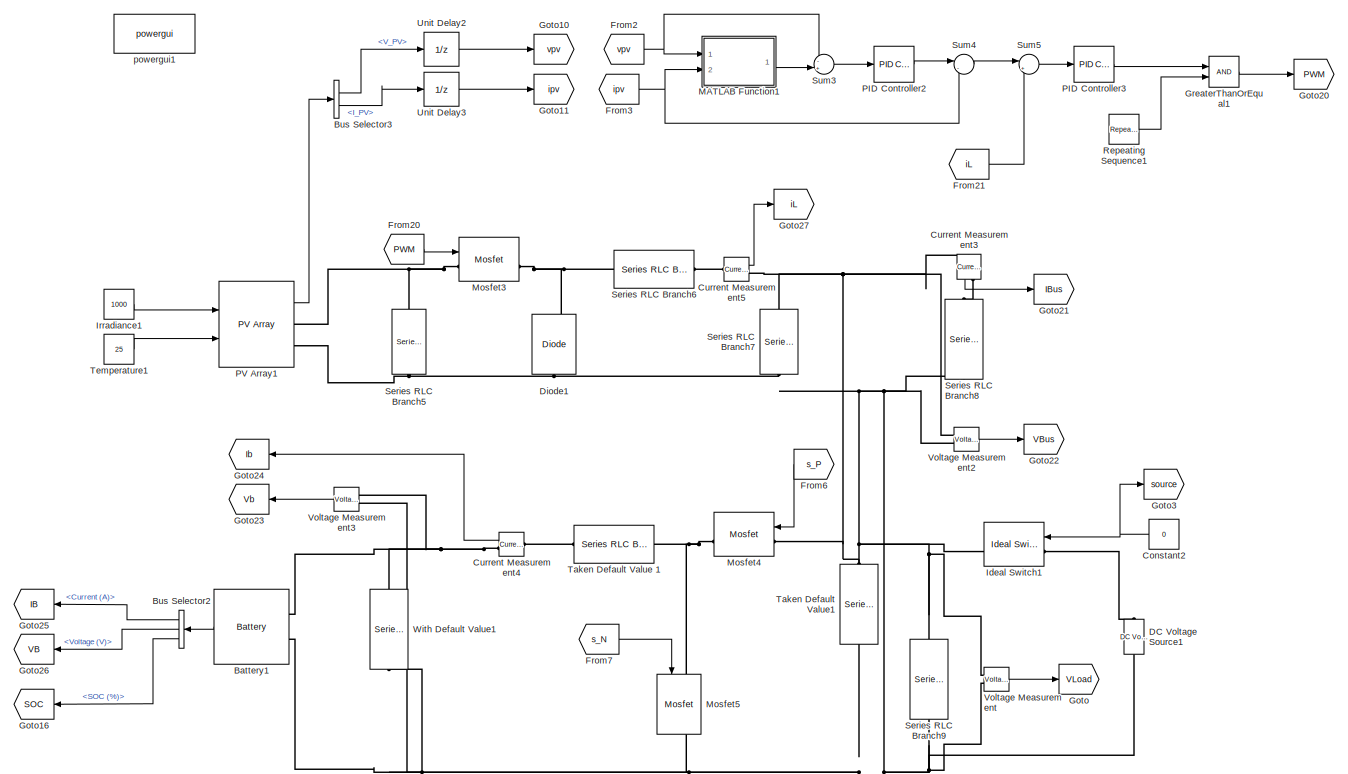
[diagram: root canvas - part 1/2, full width, top band]
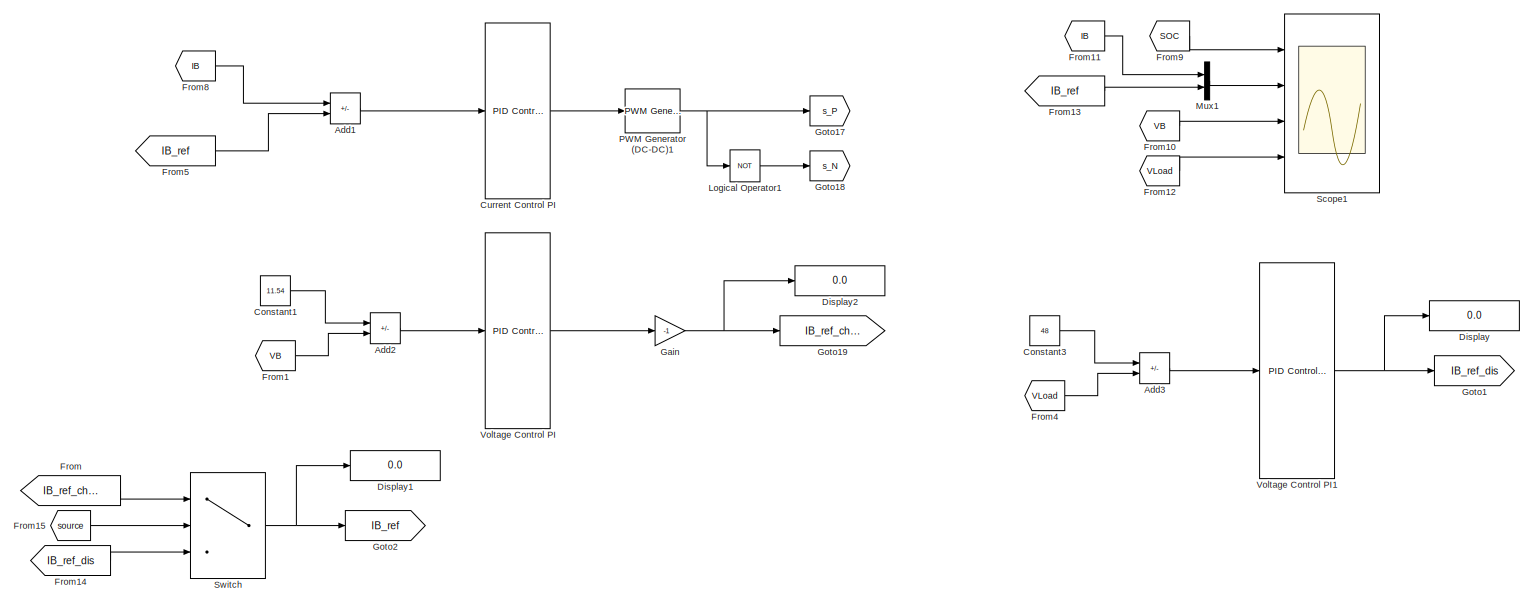
[diagram: root canvas - part 2/2, full width, bottom band]
MODEL slx_7f3824001438
KIND model
CONFIG AbsTol = auto
CONFIG EnableMultiTasking = off
CONFIG FixedStep = auto
CONFIG MaxStep = auto
CONFIG MinStep = auto
CONFIG RelTol = 1e-3
CONFIG SampleTimeConstraint = Unconstrained
CONFIG SolverName = VariableStepAuto
CONFIG StartTime = 0.0
CONFIG StopTime = 10.0
BLOCK [Sum] Add1
  IconShape = rectangular
  Inputs = +-
  Ports = [2, 1]
BLOCK [Sum] Add2
  IconShape = rectangular
  Inputs = +-
  Ports = [2, 1]
BLOCK [Sum] Add3
  IconShape = rectangular
  Inputs = +-
  Ports = [2, 1]
BLOCK [Reference] Battery1  REF=spsBatteryLib/Battery
  Ports = [0, 1, 0, 0, 0, 2]
  SourceBlock = spsBatteryLib/Battery
  SourceProductBaseCode = PS
  SourceType = Battery
BLOCK [BusSelector] Bus Selector2
  OutputSignals = Current (A),Voltage (V),SOC (%)
  Ports = [1, 3]
BLOCK [BusSelector] Bus Selector3
  OutputSignals = V_PV,I_PV
  Ports = [1, 2]
BLOCK [Constant] Constant1
  Value = 11.54
BLOCK [Constant] Constant2
  Value = 0
BLOCK [Constant] Constant3
  Value = 48
BLOCK [Reference] Current Control PI  REF=pid_lib/PID Controller
  Ports = [1, 1]
  SourceBlock = pid_lib/PID Controller
  SourceProductBaseCode = SL
  SourceType = PID 1dof
BLOCK [Reference] Current Measurement3  REF=spsCurrentMeasurementLib/Current Measurement
  NameLocation = left
  Ports = [0, 1, 0, 0, 0, 1, 1]
  SourceBlock = spsCurrentMeasurementLib/Current Measurement
  SourceProductBaseCode = PS
  SourceType = Current Measurement
  UserDataPersistent = on
BLOCK [Reference] Current Measurement4  REF=spsCurrentMeasurementLib/Current Measurement
  NameLocation = top
  Ports = [0, 1, 0, 0, 0, 1, 1]
  SourceBlock = spsCurrentMeasurementLib/Current Measurement
  SourceProductBaseCode = PS
  SourceType = Current Measurement
  UserDataPersistent = on
BLOCK [Reference] Current Measurement5  REF=spsCurrentMeasurementLib/Current Measurement
  Ports = [0, 1, 0, 0, 0, 1, 1]
  SourceBlock = spsCurrentMeasurementLib/Current Measurement
  SourceProductBaseCode = PS
  SourceType = Current Measurement
  UserDataPersistent = on
BLOCK [Reference] DC Voltage Source1  REF=spsDCVoltageSourceLib/DC Voltage Source
  Ports = [0, 0, 0, 0, 0, 1, 1]
  SourceBlock = spsDCVoltageSourceLib/DC Voltage Source
  SourceProductBaseCode = PS
  SourceType = DC Voltage Source
BLOCK [Reference] Diode1  REF=spsDiodeLib/Diode
  NameLocation = right
  Ports = [0, 1, 0, 0, 0, 1, 1]
  SourceBlock = spsDiodeLib/Diode
  SourceProductBaseCode = PS
  SourceType = Diode
BLOCK [Display] Display
  Decimation = 1
  Ports = [1]
BLOCK [Display] Display1
  Decimation = 1
  Ports = [1]
BLOCK [Display] Display2
  Decimation = 1
  Ports = [1]
BLOCK [From] From
  GotoTag = IB_ref_charge
BLOCK [From] From1
  GotoTag = VB
BLOCK [From] From10
  GotoTag = VB
BLOCK [From] From11
  GotoTag = IB
BLOCK [From] From12
  GotoTag = VLoad
BLOCK [From] From13
  GotoTag = IB_ref
BLOCK [From] From14
  GotoTag = IB_ref_dis
BLOCK [From] From15
  GotoTag = source
BLOCK [From] From2
  GotoTag = vpv
  TagVisibility = global
BLOCK [From] From20
  GotoTag = PWM
BLOCK [From] From21
  GotoTag = iL
BLOCK [From] From3
  GotoTag = ipv
  TagVisibility = global
BLOCK [From] From4
  GotoTag = VLoad
BLOCK [From] From5
  GotoTag = IB_ref
BLOCK [From] From6
  GotoTag = s_P
BLOCK [From] From7
  GotoTag = s_N
BLOCK [From] From8
  GotoTag = IB
BLOCK [From] From9
  GotoTag = SOC
BLOCK [Gain] Gain
  Gain = -1
BLOCK [Goto] Goto
  GotoTag = VLoad
BLOCK [Goto] Goto1
  GotoTag = IB_ref_dis
BLOCK [Goto] Goto10
  GotoTag = vpv
  TagVisibility = global
BLOCK [Goto] Goto11
  GotoTag = ipv
  TagVisibility = global
BLOCK [Goto] Goto16
  GotoTag = SOC
BLOCK [Goto] Goto17
  GotoTag = s_P
BLOCK [Goto] Goto18
  GotoTag = s_N
BLOCK [Goto] Goto19
  GotoTag = IB_ref_charge
BLOCK [Goto] Goto2
  GotoTag = IB_ref
BLOCK [Goto] Goto20
  GotoTag = PWM
BLOCK [Goto] Goto21
  GotoTag = IBus
BLOCK [Goto] Goto22
  GotoTag = VBus
BLOCK [Goto] Goto23
  GotoTag = Vb
BLOCK [Goto] Goto24
  GotoTag = Ib
BLOCK [Goto] Goto25
  GotoTag = IB
BLOCK [Goto] Goto26
  GotoTag = VB
BLOCK [Goto] Goto27
  GotoTag = iL
BLOCK [Goto] Goto3
  GotoTag = source
BLOCK [RelationalOperator] GreaterThanOrEqual1
  InputSameDT = off
  OutDataTypeStr = boolean
  Ports = [2, 1]
  RndMeth = Simplest
BLOCK [Reference] Ideal Switch1  REF=spsIdealSwitchLib/Ideal Switch
  Ports = [1, 1, 0, 0, 0, 1, 1]
  SourceBlock = spsIdealSwitchLib/Ideal Switch
  SourceProductBaseCode = PS
  SourceType = Ideal Switch
BLOCK [Constant] Irradiance1
  Value = 1000
BLOCK [Logic] Logical Operator1
  AllPortsSameDT = off
  Operator = NOT
  OutDataTypeStr = boolean
  Ports = [1, 1]
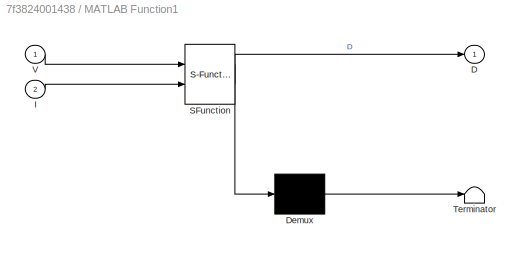
BLOCK [SubSystem] MATLAB Function1
  ErrorFcn = Stateflow.Translate.translate
  PermitHierarchicalResolution = ExplicitOnly
  Ports = [2, 1]
  RequestExecContextInheritance = off
  SFBlockType = MATLAB Function
  TreatAsAtomicUnit = on
BLOCK [Demux] MATLAB Function1/ Demux 
  Outputs = 1
  Ports = [1, 1]
BLOCK [S-Function] MATLAB Function1/ SFunction 
  EnableBusSupport = on
  FunctionName = sf_sfun
  PortCounts = [2 2]
  Ports = [2, 2]
  SFcnIsStateOwnerBlock = off
  SFunctionDeploymentMode = off
  Tag = Stateflow S-Function 1
BLOCK [Terminator] MATLAB Function1/ Terminator 
BLOCK [Outport] MATLAB Function1/D
  VectorParamsAs1DForOutWhenUnconnected = off
BLOCK [Inport] MATLAB Function1/I
  Port = 2
BLOCK [Inport] MATLAB Function1/V
BLOCK [Reference] Mosfet3  REF=spsMosfetLib/Mosfet
  Ports = [1, 1, 0, 0, 0, 1, 1]
  SourceBlock = spsMosfetLib/Mosfet
  SourceProductBaseCode = PS
  SourceType = Mosfet
BLOCK [Reference] Mosfet4  REF=spsMosfetLib/Mosfet
  Ports = [1, 1, 0, 0, 0, 1, 1]
  SourceBlock = spsMosfetLib/Mosfet
  SourceProductBaseCode = PS
  SourceType = Mosfet
BLOCK [Reference] Mosfet5  REF=spsMosfetLib/Mosfet
  NameLocation = left
  Ports = [1, 1, 0, 0, 0, 1, 1]
  SourceBlock = spsMosfetLib/Mosfet
  SourceProductBaseCode = PS
  SourceType = Mosfet
BLOCK [Mux] Mux1
  DisplayOption = bar
  Inputs = 2
  Ports = [2, 1]
BLOCK [Reference] PID Controller2  REF=pid_lib/PID Controller
  Ports = [1, 1]
  SourceBlock = pid_lib/PID Controller
  SourceProductBaseCode = SL
  SourceType = PID 1dof
BLOCK [Reference] PID Controller3  REF=pid_lib/PID Controller
  Ports = [1, 1]
  SourceBlock = pid_lib/PID Controller
  SourceProductBaseCode = SL
  SourceType = PID 1dof
BLOCK [Reference] PV Array1  REF=spsPVArrayLib/PV Array
  Ports = [2, 1, 0, 0, 0, 0, 2]
  SourceBlock = spsPVArrayLib/PV Array
  SourceProductBaseCode = PS
  SourceType = PV array
BLOCK [Reference] PWM Generator (DC-DC)1  REF=spsPWMGeneratorDCDCLib/PWM Generator
(DC-DC)
  Ports = [1, 1]
  SourceBlock = spsPWMGeneratorDCDCLib/PWM Generator\n(DC-DC)
  SourceProductBaseCode = PS
  SourceType = PWM Generator (DC-DC)
BLOCK [Reference] Repeating Sequence1  REF=simulink/Sources/Repeating
Sequence
  Ports = [0, 1]
  SourceBlock = simulink/Sources/Repeating\nSequence
  SourceProductBaseCode = SL
  SourceType = Repeating table
BLOCK [Scope] Scope1
  Floating = off
  NumInputPorts = 4
  Ports = [4]
  ScopeSpecificationString = Simulink.scopes.TimeScopeBlockCfg('CurrentConfiguration', extmgr.ConfigurationSet(extmgr.Configuration('Core','General UI',true,'FigureColor',[1 1 1]),extmgr.Configuration('Core','Source UI',true),extmgr.Configuration('Sources','WiredSimulink',true),extmgr.Configuration('Visuals','Time Domain',true,'SerializedDisplays',{struct('MinYLimReal','43.44178','MaxYLimReal','46.2045','YLabelReal','','MinYL...<+7198ch>
BLOCK [Reference] Series RLC Branch5  REF=spsSeriesRLCBranchLib/Series RLC Branch
  NameLocation = left
  Ports = [0, 0, 0, 0, 0, 1, 1]
  SourceBlock = spsSeriesRLCBranchLib/Series RLC Branch
  SourceProductBaseCode = PS
  SourceType = Series RLC Branch
BLOCK [Reference] Series RLC Branch6  REF=spsSeriesRLCBranchLib/Series RLC Branch
  Ports = [0, 0, 0, 0, 0, 1, 1]
  SourceBlock = spsSeriesRLCBranchLib/Series RLC Branch
  SourceProductBaseCode = PS
  SourceType = Series RLC Branch
BLOCK [Reference] Series RLC Branch7  REF=spsSeriesRLCBranchLib/Series RLC Branch
  NameLocation = left
  Ports = [0, 0, 0, 0, 0, 1, 1]
  SourceBlock = spsSeriesRLCBranchLib/Series RLC Branch
  SourceProductBaseCode = PS
  SourceType = Series RLC Branch
BLOCK [Reference] Series RLC Branch8  REF=spsSeriesRLCBranchLib/Series RLC Branch
  NameLocation = left
  Ports = [0, 0, 0, 0, 0, 1, 1]
  SourceBlock = spsSeriesRLCBranchLib/Series RLC Branch
  SourceProductBaseCode = PS
  SourceType = Series RLC Branch
BLOCK [Reference] Series RLC Branch9  REF=spsSeriesRLCBranchLib/Series RLC Branch
  NameLocation = left
  Ports = [0, 0, 0, 0, 0, 1, 1]
  SourceBlock = spsSeriesRLCBranchLib/Series RLC Branch
  SourceProductBaseCode = PS
  SourceType = Series RLC Branch
BLOCK [Sum] Sum3
  Inputs = -+|
  Ports = [2, 1]
BLOCK [Sum] Sum4
  Inputs = |-+
  Ports = [2, 1]
BLOCK [Sum] Sum5
  Inputs = |+-
  Ports = [2, 1]
BLOCK [Switch] Switch
  Criteria = u2 > Threshold
  InputSameDT = off
  SaturateOnIntegerOverflow = off
BLOCK [Reference] Taken Default Value 1  REF=spsSeriesRLCBranchLib/Series RLC Branch
  Ports = [0, 0, 0, 0, 0, 1, 1]
  SourceBlock = spsSeriesRLCBranchLib/Series RLC Branch
  SourceProductBaseCode = PS
  SourceType = Series RLC Branch
BLOCK [Reference] Taken Default Value1  REF=spsSeriesRLCBranchLib/Series RLC Branch
  NameLocation = left
  Ports = [0, 0, 0, 0, 0, 1, 1]
  SourceBlock = spsSeriesRLCBranchLib/Series RLC Branch
  SourceProductBaseCode = PS
  SourceType = Series RLC Branch
BLOCK [Constant] Temperature1
  Value = 25
BLOCK [UnitDelay] Unit Delay2
  HasFrameUpgradeWarning = on
  SampleTime = 1e-4
BLOCK [UnitDelay] Unit Delay3
  HasFrameUpgradeWarning = on
  SampleTime = 1e-4
BLOCK [Reference] Voltage Control PI  REF=pid_lib/PID Controller
  Ports = [1, 1]
  SourceBlock = pid_lib/PID Controller
  SourceProductBaseCode = SL
  SourceType = PID 1dof
BLOCK [Reference] Voltage Control PI1  REF=pid_lib/PID Controller
  Ports = [1, 1]
  SourceBlock = pid_lib/PID Controller
  SourceProductBaseCode = SL
  SourceType = PID 1dof
BLOCK [Reference] Voltage Measurement  REF=spsVoltageMeasurementLib/Voltage Measurement
  Ports = [0, 1, 0, 0, 0, 2]
  SourceBlock = spsVoltageMeasurementLib/Voltage Measurement
  SourceProductBaseCode = PS
  SourceType = Voltage Measurement
  UserDataPersistent = on
BLOCK [Reference] Voltage Measurement2  REF=spsVoltageMeasurementLib/Voltage Measurement
  Ports = [0, 1, 0, 0, 0, 2]
  SourceBlock = spsVoltageMeasurementLib/Voltage Measurement
  SourceProductBaseCode = PS
  SourceType = Voltage Measurement
  UserDataPersistent = on
BLOCK [Reference] Voltage Measurement3  REF=spsVoltageMeasurementLib/Voltage Measurement
  Ports = [0, 1, 0, 0, 0, 2]
  SourceBlock = spsVoltageMeasurementLib/Voltage Measurement
  SourceProductBaseCode = PS
  SourceType = Voltage Measurement
  UserDataPersistent = on
BLOCK [Reference] With Default Value1  REF=spsSeriesRLCBranchLib/Series RLC Branch
  NameLocation = left
  Ports = [0, 0, 0, 0, 0, 1, 1]
  SourceBlock = spsSeriesRLCBranchLib/Series RLC Branch
  SourceProductBaseCode = PS
  SourceType = Series RLC Branch
BLOCK [Reference] powergui1  REF=spspowerguiLib/powergui
  Ports = []
  Priority = 1
  SourceBlock = spspowerguiLib/powergui
  SourceProductBaseCode = PS
  SourceType = PSB option menu block
LINE Add1:1 -> Current Control PI:1
LINE Add2:1 -> Voltage Control PI:1
LINE Add3:1 -> Voltage Control PI1:1
LINE Battery1:1 -> Bus Selector2:1
LINE Bus Selector2:1 -> Goto25:1
LINE Bus Selector2:2 -> Goto26:1
LINE Bus Selector2:3 -> Goto16:1
LINE Bus Selector3:1 -> Unit Delay2:1
LINE Bus Selector3:2 -> Unit Delay3:1
LINE Constant1:1 -> Add2:1
NET Constant2:1 -> Goto3:1, Ideal Switch1:1
LINE Constant3:1 -> Add3:1
LINE Current Control PI:1 -> PWM Generator (DC-DC)1:1
LINE Current Measurement3:1 -> Goto21:1
LINE Current Measurement4:1 -> Goto24:1
LINE Current Measurement5:1 -> Goto27:1
LINE From10:1 -> Scope1:3
LINE From11:1 -> Mux1:1
LINE From12:1 -> Scope1:4
LINE From13:1 -> Mux1:2
LINE From14:1 -> Switch:3
LINE From15:1 -> Switch:2
LINE From1:1 -> Add2:2
LINE From20:1 -> Mosfet3:1
LINE From21:1 -> Sum5:2
NET From2:1 -> MATLAB Function1:1, Sum3:1
NET From3:1 -> MATLAB Function1:2, Sum4:2
LINE From4:1 -> Add3:2
LINE From5:1 -> Add1:2
LINE From6:1 -> Mosfet4:1
LINE From7:1 -> Mosfet5:1
LINE From8:1 -> Add1:1
LINE From9:1 -> Scope1:1
LINE From:1 -> Switch:1
NET Gain:1 -> Display2:1, Goto19:1
LINE GreaterThanOrEqual1:1 -> Goto20:1
LINE Irradiance1:1 -> PV Array1:1
LINE Logical Operator1:1 -> Goto18:1
LINE MATLAB Function1:1 -> Sum3:2
LINE Mux1:1 -> Scope1:2
LINE PID Controller2:1 -> Sum4:1
LINE PID Controller3:1 -> GreaterThanOrEqual1:1
LINE PV Array1:1 -> Bus Selector3:1
NET PWM Generator (DC-DC)1:1 -> Goto17:1, Logical Operator1:1
LINE Repeating Sequence1:1 -> GreaterThanOrEqual1:2
LINE Sum3:1 -> PID Controller2:1
LINE Sum4:1 -> Sum5:1
LINE Sum5:1 -> PID Controller3:1
NET Switch:1 -> Display1:1, Goto2:1
LINE Temperature1:1 -> PV Array1:2
LINE Unit Delay2:1 -> Goto10:1
LINE Unit Delay3:1 -> Goto11:1
NET Voltage Control PI1:1 -> Display:1, Goto1:1
LINE Voltage Control PI:1 -> Gain:1
LINE Voltage Measurement2:1 -> Goto22:1
LINE Voltage Measurement3:1 -> Goto23:1
LINE Voltage Measurement:1 -> Goto:1
PNET net1: Battery1:LConn1 -- Current Measurement4:RConn1 -- Voltage Measurement3:LConn1 -- With Default Value1:LConn1
PNET net2: Battery1:LConn2 -- DC Voltage Source1:LConn1 -- Diode1:LConn1 -- Mosfet5:RConn1 -- PV Array1:RConn2 -- Series RLC Branch5:RConn1 -- Series RLC Branch7:RConn1 -- Series RLC Branch8:RConn1 -- Series RLC Branch9:RConn1 -- Taken Default Value1:RConn1 -- Voltage Measurement2:LConn2 -- Voltage Measurement3:LConn2 -- Voltage Measurement:LConn2 -- With Default Value1:RConn1
PNET net3: Current Measurement3:LConn1 -- Current Measurement5:RConn1 -- Ideal Switch1:RConn1 -- Mosfet4:LConn1 -- Series RLC Branch7:LConn1 -- Series RLC Branch9:LConn1 -- Taken Default Value1:LConn1 -- Voltage Measurement2:LConn1 -- Voltage Measurement:LConn1
PLINE Current Measurement3:RConn1 -- Series RLC Branch8:LConn1
PLINE Current Measurement4:LConn1 -- Taken Default Value 1:LConn1
PLINE Current Measurement5:LConn1 -- Series RLC Branch6:RConn1
PLINE DC Voltage Source1:RConn1 -- Ideal Switch1:LConn1
PNET net4: Diode1:RConn1 -- Mosfet3:RConn1 -- Series RLC Branch6:LConn1
PNET net5: Mosfet3:LConn1 -- PV Array1:RConn1 -- Series RLC Branch5:LConn1
PNET net6: Mosfet4:RConn1 -- Mosfet5:LConn1 -- Taken Default Value 1:RConn1
note: NET lines group one-source signal fan-out (src -> all destinations, sorted); 1:1 wires keep LINE; PNET lines group multi-terminal physical nets as a canonical sorted terminal list (undirected conserving connections); 2-terminal nets keep the pairwise PLINE form
CHART MATLAB Function1 states=1 transitions=1
  STATE_LABEL 'eML_blk_kernel()'
  STATE_LABEL "SCRIPT:\nfunction D = Duty_Cycle(V,I)\nDmax = 0.95;\nDmin = 0;\nDinit = 0.95;\nDelD = 0.0001;\npersistent Vold Pold Dold;\n\ndatatype = 'double' ;\n\nif isempty(Vold)\n    Vold = 0;\n    Pold = 0;\n    Dold = Dinit;\nend\n\nP = V*I;\ndV = V-Vold;\ndP = P - Pold;\nif dP ~= 0 \n    if dP < 0 \n        if dV < 0\n            D = Dold-DelD;\n        else\n            D = Dold + DelD;\n        end\n    else\n        if dV < 0\n  ...<+185ch>"
CHART  states=0 transitions=0
